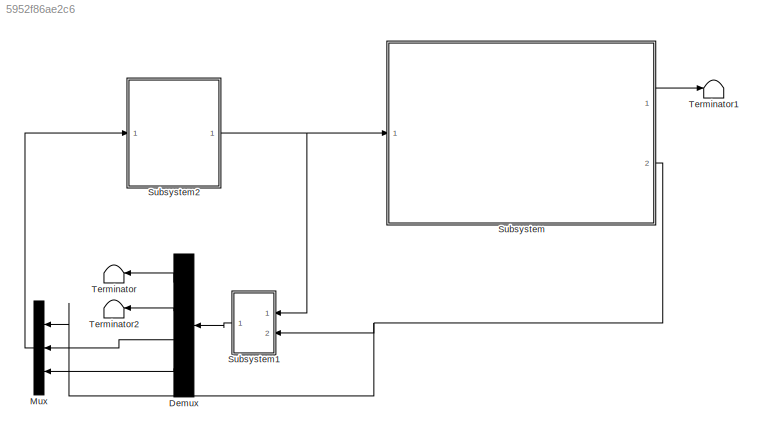
MODEL slx_5952f86ae2c6
KIND model
CONFIG AbsTol = auto
CONFIG EnableMultiTasking = off
CONFIG FixedStep = auto
CONFIG MaxStep = auto
CONFIG MinStep = auto
CONFIG RelTol = 1e-3
CONFIG SampleTimeConstraint = Unconstrained
CONFIG Solver = VariableStepAuto
CONFIG SolverName = VariableStepAuto
CONFIG StartTime = 0.0
CONFIG StopTime = 10.0
BLOCK [Demux] Demux
  DisplayOption = bar
  Ports = [1, 4]
BLOCK [Mux] Mux
  DisplayOption = bar
  Inputs = 3
  Ports = [3, 1]
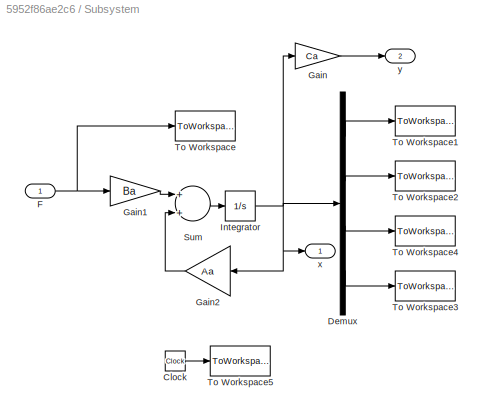
BLOCK [SubSystem] Subsystem
  Ports = [1, 2]
  RequestExecContextInheritance = off
BLOCK [Clock] Subsystem/Clock
BLOCK [Demux] Subsystem/Demux
  DisplayOption = bar
  Ports = [1, 4]
BLOCK [Inport] Subsystem/F
  IconDisplay = Port number
BLOCK [Gain] Subsystem/Gain
  Gain = Ca
  Multiplication = Matrix(K*u)
  OutDataTypeStr = Inherit: Inherit via internal rule
  ParamDataTypeStr = Inherit: Inherit via internal rule
  SaturateOnIntegerOverflow = off
BLOCK [Gain] Subsystem/Gain1
  Gain = Ba
  Multiplication = Matrix(K*u)
  OutDataTypeStr = Inherit: Inherit via internal rule
  ParamDataTypeStr = Inherit: Inherit via internal rule
  SaturateOnIntegerOverflow = off
BLOCK [Gain] Subsystem/Gain2
  Gain = Aa
  Multiplication = Matrix(K*u)
  OutDataTypeStr = Inherit: Inherit via internal rule
  ParamDataTypeStr = Inherit: Inherit via internal rule
  SaturateOnIntegerOverflow = off
BLOCK [Integrator] Subsystem/Integrator
  InitialCondition = [x10,x20,x30,x40]'
  Ports = [1, 1]
BLOCK [Sum] Subsystem/Sum
  InputSameDT = off
  OutDataTypeStr = Inherit: Inherit via internal rule
  Ports = [2, 1]
  SaturateOnIntegerOverflow = off
BLOCK [ToWorkspace] Subsystem/To Workspace
  FixptAsFi = on
  MaxDataPoints = inf
  Ports = [1]
  SampleTime = -1
  Save2DSignal = 3-D array (concatenate along third dimension)
  VariableName = Fa
BLOCK [ToWorkspace] Subsystem/To Workspace1
  FixptAsFi = on
  MaxDataPoints = inf
  Ports = [1]
  SampleTime = -1
  Save2DSignal = 3-D array (concatenate along third dimension)
  VariableName = x1a
BLOCK [ToWorkspace] Subsystem/To Workspace2
  FixptAsFi = on
  MaxDataPoints = inf
  Ports = [1]
  SampleTime = -1
  Save2DSignal = 3-D array (concatenate along third dimension)
  VariableName = x2a
BLOCK [ToWorkspace] Subsystem/To Workspace3
  FixptAsFi = on
  MaxDataPoints = inf
  Ports = [1]
  SampleTime = -1
  Save2DSignal = 3-D array (concatenate along third dimension)
  VariableName = x4a
BLOCK [ToWorkspace] Subsystem/To Workspace4
  FixptAsFi = on
  MaxDataPoints = inf
  Ports = [1]
  SampleTime = -1
  Save2DSignal = 3-D array (concatenate along third dimension)
  VariableName = x3a
BLOCK [ToWorkspace] Subsystem/To Workspace5
  FixptAsFi = on
  MaxDataPoints = inf
  Ports = [1]
  SampleTime = -1
  Save2DSignal = 3-D array (concatenate along third dimension)
  VariableName = ta
BLOCK [Outport] Subsystem/x
  IconDisplay = Port number
BLOCK [Outport] Subsystem/y
  IconDisplay = Port number
  Port = 2
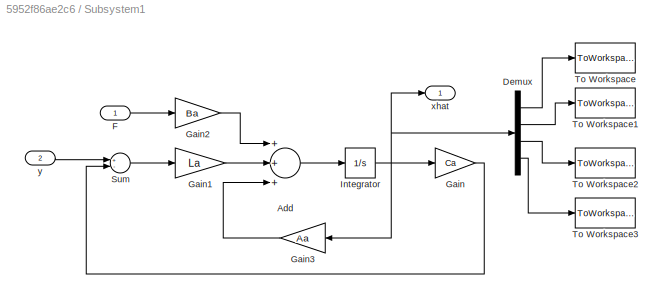
BLOCK [SubSystem] Subsystem1
  Ports = [2, 1]
  RequestExecContextInheritance = off
BLOCK [Sum] Subsystem1/Add
  InputSameDT = off
  Inputs = +++
  OutDataTypeStr = Inherit: Inherit via internal rule
  Ports = [3, 1]
  SaturateOnIntegerOverflow = off
BLOCK [Demux] Subsystem1/Demux
  DisplayOption = bar
  Ports = [1, 4]
BLOCK [Inport] Subsystem1/F
  IconDisplay = Port number
BLOCK [Gain] Subsystem1/Gain
  Gain = Ca
  Multiplication = Matrix(K*u)
  OutDataTypeStr = Inherit: Inherit via internal rule
  ParamDataTypeStr = Inherit: Inherit via internal rule
  SaturateOnIntegerOverflow = off
BLOCK [Gain] Subsystem1/Gain1
  Gain = La
  Multiplication = Matrix(K*u)
  OutDataTypeStr = Inherit: Inherit via internal rule
  ParamDataTypeStr = Inherit: Inherit via internal rule
  SaturateOnIntegerOverflow = off
BLOCK [Gain] Subsystem1/Gain2
  Gain = Ba
  Multiplication = Matrix(K*u)
  OutDataTypeStr = Inherit: Inherit via internal rule
  ParamDataTypeStr = Inherit: Inherit via internal rule
  SaturateOnIntegerOverflow = off
BLOCK [Gain] Subsystem1/Gain3
  Gain = Aa
  Multiplication = Matrix(K*u)
  OutDataTypeStr = Inherit: Inherit via internal rule
  ParamDataTypeStr = Inherit: Inherit via internal rule
  SaturateOnIntegerOverflow = off
BLOCK [Integrator] Subsystem1/Integrator
  Ports = [1, 1]
BLOCK [Sum] Subsystem1/Sum
  InputSameDT = off
  Inputs = +-
  OutDataTypeStr = Inherit: Inherit via internal rule
  Ports = [2, 1]
  SaturateOnIntegerOverflow = off
BLOCK [ToWorkspace] Subsystem1/To Workspace
  FixptAsFi = on
  MaxDataPoints = inf
  Ports = [1]
  SampleTime = -1
  Save2DSignal = 3-D array (concatenate along third dimension)
  VariableName = x1ahat
BLOCK [ToWorkspace] Subsystem1/To Workspace1
  FixptAsFi = on
  MaxDataPoints = inf
  Ports = [1]
  SampleTime = -1
  Save2DSignal = 3-D array (concatenate along third dimension)
  VariableName = x2ahat
BLOCK [ToWorkspace] Subsystem1/To Workspace2
  FixptAsFi = on
  MaxDataPoints = inf
  Ports = [1]
  SampleTime = -1
  Save2DSignal = 3-D array (concatenate along third dimension)
  VariableName = x3ahat
BLOCK [ToWorkspace] Subsystem1/To Workspace3
  FixptAsFi = on
  MaxDataPoints = inf
  Ports = [1]
  SampleTime = -1
  Save2DSignal = 3-D array (concatenate along third dimension)
  VariableName = x4ahat
BLOCK [Outport] Subsystem1/xhat
  IconDisplay = Port number
BLOCK [Inport] Subsystem1/y
  IconDisplay = Port number
  Port = 2
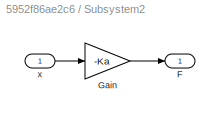
BLOCK [SubSystem] Subsystem2
  Ports = [1, 1]
  RequestExecContextInheritance = off
BLOCK [Outport] Subsystem2/F
  IconDisplay = Port number
BLOCK [Gain] Subsystem2/Gain
  Gain = -Ka
  Multiplication = Matrix(K*u)
  OutDataTypeStr = Inherit: Inherit via internal rule
  ParamDataTypeStr = Inherit: Inherit via internal rule
  SaturateOnIntegerOverflow = off
BLOCK [Inport] Subsystem2/x
  IconDisplay = Port number
BLOCK [Terminator] Terminator
BLOCK [Terminator] Terminator1
BLOCK [Terminator] Terminator2
LINE Demux:1 -> Terminator:1
LINE Demux:2 -> Terminator2:1
LINE Demux:3 -> Mux:2
LINE Demux:4 -> Mux:3
LINE Mux:1 -> Subsystem2:1
LINE Subsystem/Clock:1 -> Subsystem/To Workspace5:1
LINE Subsystem/Demux:1 -> Subsystem/To Workspace1:1
LINE Subsystem/Demux:2 -> Subsystem/To Workspace2:1
LINE Subsystem/Demux:3 -> Subsystem/To Workspace4:1
LINE Subsystem/Demux:4 -> Subsystem/To Workspace3:1
NET Subsystem/F:1 -> Subsystem/Gain1:1, Subsystem/To Workspace:1
LINE Subsystem/Gain1:1 -> Subsystem/Sum:1
LINE Subsystem/Gain2:1 -> Subsystem/Sum:2
LINE Subsystem/Gain:1 -> Subsystem/y:1
NET Subsystem/Integrator:1 -> Subsystem/Demux:1, Subsystem/Gain2:1, Subsystem/Gain:1, Subsystem/x:1
LINE Subsystem/Sum:1 -> Subsystem/Integrator:1
LINE Subsystem1/Add:1 -> Subsystem1/Integrator:1
LINE Subsystem1/Demux:1 -> Subsystem1/To Workspace:1
LINE Subsystem1/Demux:2 -> Subsystem1/To Workspace1:1
LINE Subsystem1/Demux:3 -> Subsystem1/To Workspace2:1
LINE Subsystem1/Demux:4 -> Subsystem1/To Workspace3:1
LINE Subsystem1/F:1 -> Subsystem1/Gain2:1
LINE Subsystem1/Gain1:1 -> Subsystem1/Add:2
LINE Subsystem1/Gain2:1 -> Subsystem1/Add:1
LINE Subsystem1/Gain3:1 -> Subsystem1/Add:3
LINE Subsystem1/Gain:1 -> Subsystem1/Sum:2
NET Subsystem1/Integrator:1 -> Subsystem1/Demux:1, Subsystem1/Gain3:1, Subsystem1/Gain:1, Subsystem1/xhat:1
LINE Subsystem1/Sum:1 -> Subsystem1/Gain1:1
LINE Subsystem1/y:1 -> Subsystem1/Sum:1
LINE Subsystem1:1 -> Demux:1
LINE Subsystem2/Gain:1 -> Subsystem2/F:1
LINE Subsystem2/x:1 -> Subsystem2/Gain:1
NET Subsystem2:1 -> Subsystem1:1, Subsystem:1
LINE Subsystem:1 -> Terminator1:1
NET Subsystem:2 -> Mux:1, Subsystem1:2
note: NET lines group one-source signal fan-out (src -> all destinations, sorted); 1:1 wires keep LINE
